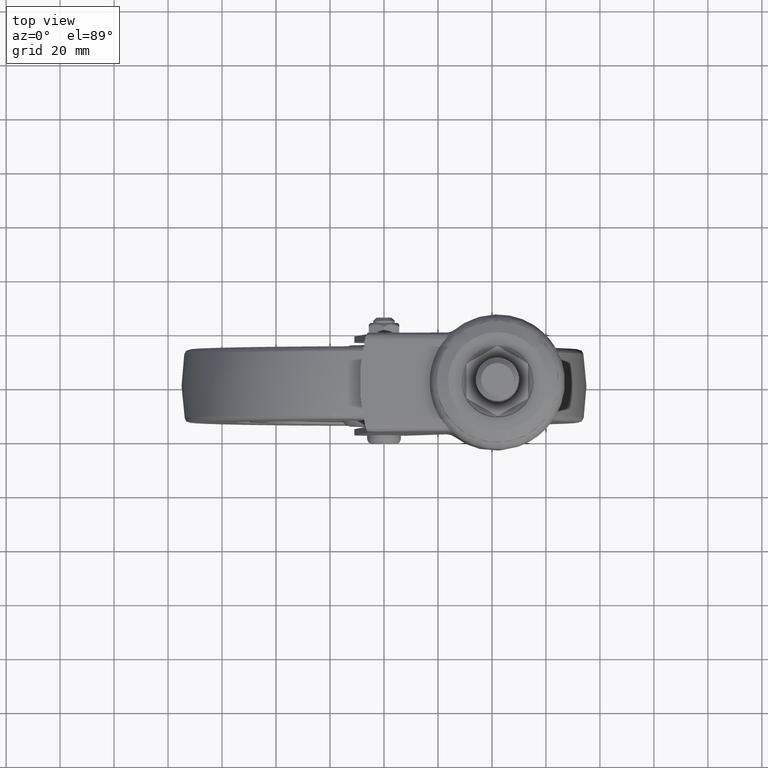
[diagram: clean part render]
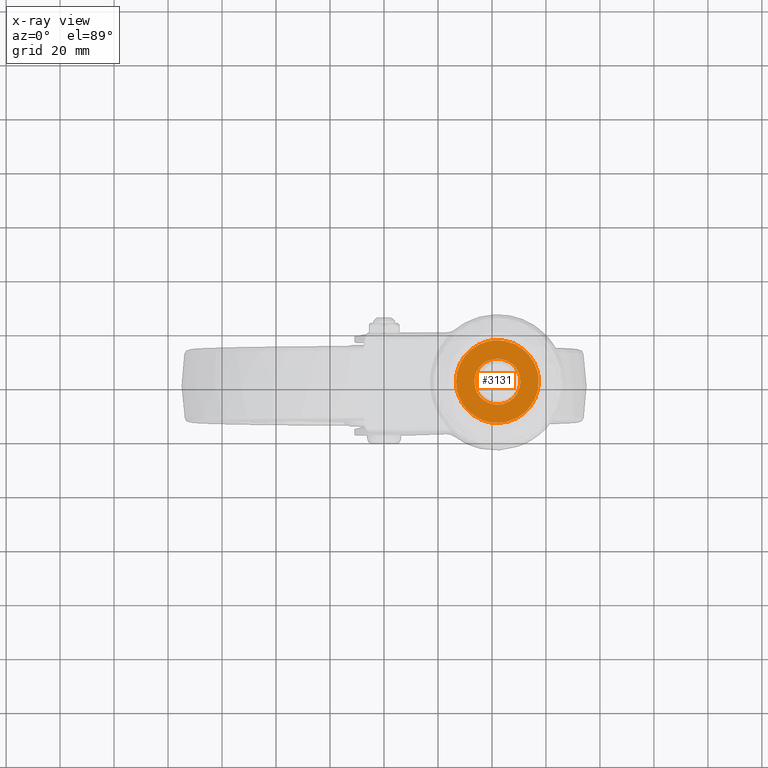
[diagram: x-ray — body ghosted, one internal face saturated and labeled with its STEP entity id]
A machine part, top view, then the same camera in x-ray: the body is ghosted and one INTERNAL B-rep face — a face not visible from any outside direction — is saturated and labeled: STEP entity #3131.
In plain terms, the highlighted face is a freeform B-spline surface patch.
Its self-contained STEP definition (entity closure, byte-faithful):
#504=CARTESIAN_POINT('',(42.074175552445389,8.499676346039038,93.099995000000106));
#505=VERTEX_POINT('',#504);
#511=CARTESIAN_POINT('',(33.500000000000000,-2.273737E-013,93.099995000000106));
#512=VERTEX_POINT('',#511);
#513=CARTESIAN_POINT('',(42.074175552445389,8.499676346039038,93.099995000000106));
#514=CARTESIAN_POINT('',(42.037088482685213,8.499999999999773,93.099995000000106));
#515=CARTESIAN_POINT('',(42.0,8.499999999999773,93.099995000000106));
#516=CARTESIAN_POINT('',(33.500000000000007,8.499999999999773,93.099995000000106));
#517=CARTESIAN_POINT('',(33.500000000000000,-2.273737E-013,93.099995000000106));
#525=(BOUNDED_CURVE()B_SPLINE_CURVE(2,(#513,#514,#515,#516,#517),.UNSPECIFIED.,.F.,.U.)B_SPLINE_CURVE_WITH_KNOTS((3,2,3),(0.248460105635618,0.250000000000000,0.500000000000000),.UNSPECIFIED.)CURVE()GEOMETRIC_REPRESENTATION_ITEM()RATIONAL_B_SPLINE_CURVE((0.996414028032378,0.998195901531934,1.0,0.707106781186548,1.0))REPRESENTATION_ITEM(''));
#526=EDGE_CURVE('',#505,#512,#525,.T.);
#528=CARTESIAN_POINT('',(50.500000000000000,-2.273737E-013,93.099995000000106));
#529=VERTEX_POINT('',#528);
#530=CARTESIAN_POINT('',(33.500000000000000,-2.273737E-013,93.099995000000106));
#531=CARTESIAN_POINT('',(33.500000000000007,-8.500000000000227,93.099995000000106));
#532=CARTESIAN_POINT('',(42.0,-8.500000000000227,93.099995000000106));
#533=CARTESIAN_POINT('',(50.499999999999993,-8.500000000000227,93.099995000000106));
#534=CARTESIAN_POINT('',(50.500000000000000,-2.273737E-013,93.099995000000106));
#542=(BOUNDED_CURVE()B_SPLINE_CURVE(2,(#530,#531,#532,#533,#534),.UNSPECIFIED.,.F.,.U.)B_SPLINE_CURVE_WITH_KNOTS((3,2,3),(0.500000000000000,0.750000000000000,1.0),.UNSPECIFIED.)CURVE()GEOMETRIC_REPRESENTATION_ITEM()RATIONAL_B_SPLINE_CURVE((1.0,0.707106781186548,1.0,0.707106781186548,1.0))REPRESENTATION_ITEM(''));
#543=EDGE_CURVE('',#512,#529,#542,.T.);
#545=CARTESIAN_POINT('',(47.861931590944053,6.155303243795695,93.099995000000121));
#546=VERTEX_POINT('',#545);
#547=CARTESIAN_POINT('',(50.500000000000000,-2.273737E-013,93.099995000000106));
#548=CARTESIAN_POINT('',(50.500000000000007,3.642969418212116,93.099995000000106));
#549=CARTESIAN_POINT('',(47.861931590944053,6.155303243795696,93.099995000000106));
#557=(BOUNDED_CURVE()B_SPLINE_CURVE(2,(#547,#548,#549),.UNSPECIFIED.,.F.,.U.)B_SPLINE_CURVE_WITH_KNOTS((3,3),(0.0,0.128683024516054),.UNSPECIFIED.)CURVE()GEOMETRIC_REPRESENTATION_ITEM()RATIONAL_B_SPLINE_CURVE((1.0,0.849238458971370,0.853680526584862))REPRESENTATION_ITEM(''));
#558=EDGE_CURVE('',#529,#546,#557,.T.);
#596=CARTESIAN_POINT('',(47.861931590944053,6.155303243795696,93.099995000000106));
#597=CARTESIAN_POINT('',(45.430990401614231,8.470381866092062,93.099995000000106));
#598=CARTESIAN_POINT('',(42.074175552445389,8.499676346039038,93.099995000000106));
#606=(BOUNDED_CURVE()B_SPLINE_CURVE(2,(#596,#597,#598),.UNSPECIFIED.,.F.,.U.)B_SPLINE_CURVE_WITH_KNOTS((3,3),(0.128683024516054,0.248460105635618),.UNSPECIFIED.)CURVE()GEOMETRIC_REPRESENTATION_ITEM()RATIONAL_B_SPLINE_CURVE((0.853680526584862,0.857815165904079,0.996414028032379))REPRESENTATION_ITEM(''));
#607=EDGE_CURVE('',#546,#505,#606,.T.);
#1699=CARTESIAN_POINT('',(35.681043144985843,-13.967648185844920,93.099994997955974));
#1700=VERTEX_POINT('',#1699);
#1701=CARTESIAN_POINT('',(26.669494087227601,-2.273737E-013,93.099995000000106));
#1702=VERTEX_POINT('',#1701);
#1703=CARTESIAN_POINT('',(35.681043144985843,-13.967648185844912,93.099994997955974));
#1704=CARTESIAN_POINT('',(26.669494087227601,-9.890828025741268,93.099995000000106));
#1705=CARTESIAN_POINT('',(26.669494087227601,-2.273737E-013,93.099995000000106));
#1713=(BOUNDED_CURVE()B_SPLINE_CURVE(2,(#1703,#1704,#1705),.UNSPECIFIED.,.F.,.U.)B_SPLINE_CURVE_WITH_KNOTS((3,3),(0.820000000003523,1.0),.UNSPECIFIED.)CURVE()GEOMETRIC_REPRESENTATION_ITEM()RATIONAL_B_SPLINE_CURVE((0.881905454170784,0.789116882458442,1.0))REPRESENTATION_ITEM(''));
#1714=EDGE_CURVE('',#1700,#1702,#1713,.T.);
#1716=CARTESIAN_POINT('',(42.0,15.330505912966091,93.099994999676085));
#1717=VERTEX_POINT('',#1716);
#1718=CARTESIAN_POINT('',(26.669494087227601,-2.273737E-013,93.099995000000106));
#1719=CARTESIAN_POINT('',(26.669494087227601,15.330505912772180,93.099995000000121));
#1720=CARTESIAN_POINT('',(42.0,15.330505912966091,93.099994999676085));
#1728=(BOUNDED_CURVE()B_SPLINE_CURVE(2,(#1718,#1719,#1720),.UNSPECIFIED.,.F.,.U.)B_SPLINE_CURVE_WITH_KNOTS((3,3),(0.0,0.250000000000000),.UNSPECIFIED.)CURVE()GEOMETRIC_REPRESENTATION_ITEM()RATIONAL_B_SPLINE_CURVE((1.0,0.707106781186547,1.0))REPRESENTATION_ITEM(''));
#1729=EDGE_CURVE('',#1702,#1717,#1728,.T.);
#1826=CARTESIAN_POINT('',(57.330505912772402,-2.273737E-013,93.099995000000106));
#1827=VERTEX_POINT('',#1826);
#1828=CARTESIAN_POINT('',(57.330505912772402,-2.273737E-013,93.099995000000106));
#1829=CARTESIAN_POINT('',(57.330505912772409,-15.330505912772630,93.099995000000106));
#1830=CARTESIAN_POINT('',(42.0,-15.330505912772630,93.099995000000106));
#1831=CARTESIAN_POINT('',(38.693552600587566,-15.330505912772624,93.099995000000106));
#1832=CARTESIAN_POINT('',(35.681043144985836,-13.967648185844913,93.099994997955974));
#1840=(BOUNDED_CURVE()B_SPLINE_CURVE(2,(#1828,#1829,#1830,#1831,#1832),.UNSPECIFIED.,.F.,.U.)B_SPLINE_CURVE_WITH_KNOTS((3,2,3),(0.500000000000000,0.750000000000000,0.820000000003522),.UNSPECIFIED.)CURVE()GEOMETRIC_REPRESENTATION_ITEM()RATIONAL_B_SPLINE_CURVE((1.0,0.707106781186548,1.0,0.917989898728107,0.881905454170785))REPRESENTATION_ITEM(''));
#1841=EDGE_CURVE('',#1827,#1700,#1840,.T.);
#1905=CARTESIAN_POINT('',(42.0,15.330505912966091,93.099994999676085));
#1906=CARTESIAN_POINT('',(57.330505912772409,15.330505912772177,93.099995000000106));
#1907=CARTESIAN_POINT('',(57.330505912772402,-2.273737E-013,93.099995000000106));
#1915=(BOUNDED_CURVE()B_SPLINE_CURVE(2,(#1905,#1906,#1907),.UNSPECIFIED.,.F.,.U.)B_SPLINE_CURVE_WITH_KNOTS((3,3),(0.250000000000000,0.500000000000000),.UNSPECIFIED.)CURVE()GEOMETRIC_REPRESENTATION_ITEM()RATIONAL_B_SPLINE_CURVE((1.0,0.707106781186548,1.0))REPRESENTATION_ITEM(''));
#1916=EDGE_CURVE('',#1717,#1827,#1915,.T.);
#3114=CARTESIAN_POINT('',(25.137977291158592,-16.856700029142310,93.099995000000121));
#3115=CARTESIAN_POINT('',(58.862021886449000,-16.856700029142310,93.099995000000106));
#3116=CARTESIAN_POINT('',(25.137977291158592,16.861770964367850,93.099995000000121));
#3117=CARTESIAN_POINT('',(58.862021886449000,16.861770964367850,93.099995000000106));
#3118=B_SPLINE_SURFACE_WITH_KNOTS('',1,1,((#3114,#3116),(#3115,#3117)),.UNSPECIFIED.,.F.,.F.,.U.,(2,2),(2,2),(0.0,33.724044595290422),(0.0,33.718470993510152),.UNSPECIFIED.);
#3119=ORIENTED_EDGE('',*,*,#1714,.F.);
#3120=ORIENTED_EDGE('',*,*,#1841,.F.);
#3121=ORIENTED_EDGE('',*,*,#1916,.F.);
#3122=ORIENTED_EDGE('',*,*,#1729,.F.);
#3123=EDGE_LOOP('',(#3119,#3120,#3121,#3122));
#3124=FACE_OUTER_BOUND('',#3123,.T.);
#3125=ORIENTED_EDGE('',*,*,#543,.F.);
#3126=ORIENTED_EDGE('',*,*,#526,.F.);
#3127=ORIENTED_EDGE('',*,*,#607,.F.);
#3128=ORIENTED_EDGE('',*,*,#558,.F.);
#3129=EDGE_LOOP('',(#3125,#3126,#3127,#3128));
#3130=FACE_BOUND('',#3129,.T.);
#3131=ADVANCED_FACE('',(#3124,#3130),#3118,.T.);